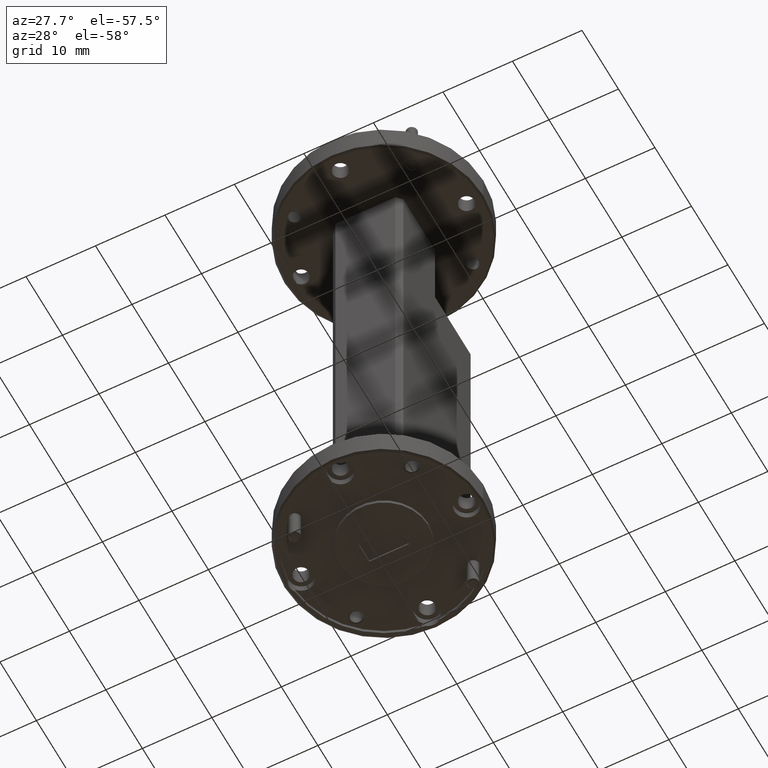
[diagram: clean part render]
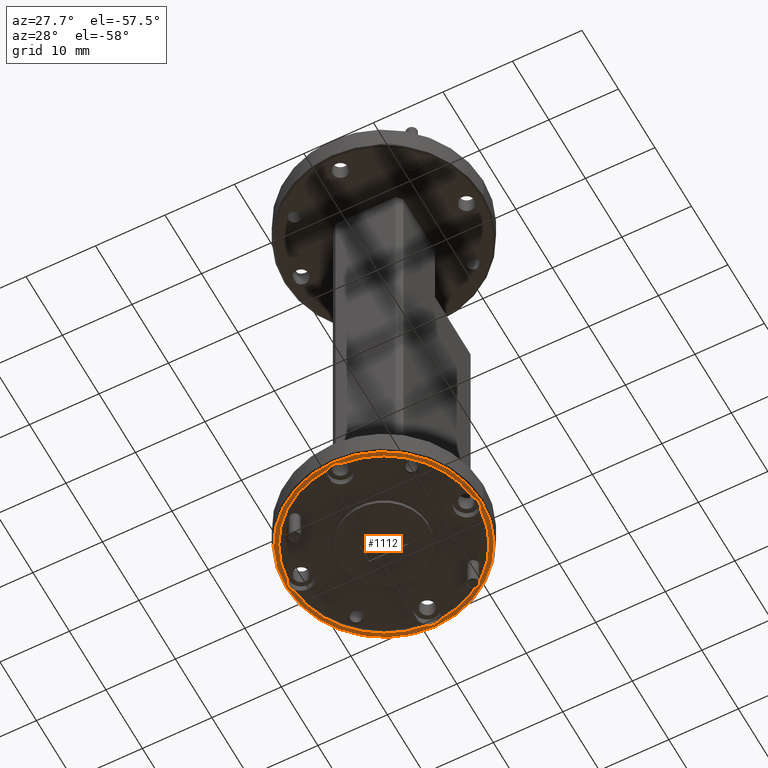
[diagram: same view with one face highlighted and labeled with its STEP entity id]
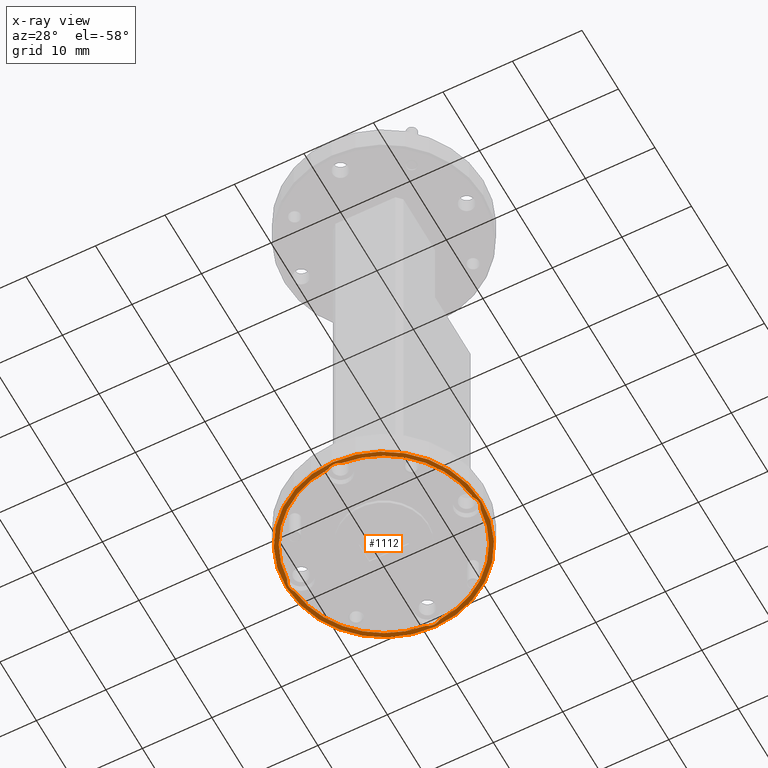
[diagram: x-ray of the same camera — body ghosted, the highlighted face saturated]
A machine part, auxiliary view. The second image highlights one B-rep face of the part: STEP entity #1112.
The next image is the same camera in x-ray: the body ghosted, the highlighted face saturated — about 0% of this face is hidden behind the body in this view.
In plain terms, the highlighted planar face has unit normal (-0, 0, 1).
Its self-contained STEP definition (entity closure, byte-faithful):
#4 = ORIENTED_EDGE ( 'NONE', *, *, #5366, .F. ) ;
#36 = DIRECTION ( 'NONE',  ( -0.000000000000000000, -0.000000000000000000, -1.000000000000000000 ) ) ;
#111 = DIRECTION ( 'NONE',  ( -1.000000000000000000, 0.000000000000000000, 0.000000000000000000 ) ) ;
#279 = CIRCLE ( 'NONE', #4089, 0.07000000000000000666 ) ;
#284 = CIRCLE ( 'NONE', #1395, 0.07000000000000000666 ) ;
#306 = AXIS2_PLACEMENT_3D ( 'NONE', #1195, #4235, #445 ) ;
#349 = DIRECTION ( 'NONE',  ( 0.000000000000000000, 0.000000000000000000, -1.000000000000000000 ) ) ;
#386 = CARTESIAN_POINT ( 'NONE',  ( -0.5524999999999993250, 6.827405905246489489E-17, -1.500000000000000222 ) ) ;
#445 = DIRECTION ( 'NONE',  ( -1.000000000000000000, 0.000000000000000000, 0.000000000000000000 ) ) ;
#660 = VERTEX_POINT ( 'NONE', #9755 ) ;
#734 = VERTEX_POINT ( 'NONE', #8198 ) ;
#735 = VERTEX_POINT ( 'NONE', #3778 ) ;
#811 = VERTEX_POINT ( 'NONE', #4733 ) ;
#830 = CARTESIAN_POINT ( 'NONE',  ( -0.5259550000000001724, 0.04034337585031758794, -1.500000000000000222 ) ) ;
#919 = CARTESIAN_POINT ( 'NONE',  ( 0.5259549999999999503, -0.04034337585031778223, -1.500000000000000222 ) ) ;
#988 = VERTEX_POINT ( 'NONE', #2856 ) ;
#1108 = AXIS2_PLACEMENT_3D ( 'NONE', #9369, #4949, #5711 ) ;
#1112 = ADVANCED_FACE ( 'NONE', ( #6789, #2175 ), #1568, .F. ) ;
#1141 = VERTEX_POINT ( 'NONE', #3654 ) ;
#1195 = CARTESIAN_POINT ( 'NONE',  ( 0.000000000000000000, 0.000000000000000000, -1.500000000000000222 ) ) ;
#1395 = AXIS2_PLACEMENT_3D ( 'NONE', #3806, #2413, #2320 ) ;
#1498 = EDGE_CURVE ( 'NONE', #4524, #3958, #7205, .T. ) ;
#1568 = PLANE ( 'NONE',  #9031 ) ;
#1775 = ORIENTED_EDGE ( 'NONE', *, *, #9734, .F. ) ;
#1804 = ORIENTED_EDGE ( 'NONE', *, *, #8162, .F. ) ;
#1861 = CARTESIAN_POINT ( 'NONE',  ( 0.000000000000000000, 0.000000000000000000, -1.500000000000000222 ) ) ;
#1977 = DIRECTION ( 'NONE',  ( 0.000000000000000000, -0.000000000000000000, -1.000000000000000000 ) ) ;
#2092 = CARTESIAN_POINT ( 'NONE',  ( 0.04034337585031765039, -0.5259549999999999503, -1.500000000000000222 ) ) ;
#2175 = FACE_OUTER_BOUND ( 'NONE', #4555, .T. ) ;
#2276 = ORIENTED_EDGE ( 'NONE', *, *, #4931, .F. ) ;
#2281 = DIRECTION ( 'NONE',  ( -1.000000000000000000, 0.000000000000000000, 0.000000000000000000 ) ) ;
#2318 = CARTESIAN_POINT ( 'NONE',  ( 0.000000000000000000, 0.000000000000000000, -1.500000000000000222 ) ) ;
#2320 = DIRECTION ( 'NONE',  ( -1.000000000000000000, 0.000000000000000000, 0.000000000000000000 ) ) ;
#2352 = ORIENTED_EDGE ( 'NONE', *, *, #6052, .F. ) ;
#2413 = DIRECTION ( 'NONE',  ( -0.000000000000000000, -0.000000000000000000, -1.000000000000000000 ) ) ;
#2416 = ORIENTED_EDGE ( 'NONE', *, *, #4721, .T. ) ;
#2448 = AXIS2_PLACEMENT_3D ( 'NONE', #6099, #36, #2281 ) ;
#2704 = CIRCLE ( 'NONE', #9268, 0.5524999999999993250 ) ;
#2721 = CARTESIAN_POINT ( 'NONE',  ( 0.000000000000000000, 0.000000000000000000, -1.500000000000000222 ) ) ;
#2807 = CARTESIAN_POINT ( 'NONE',  ( 0.4687500000000000000, 0.000000000000000000, -1.500000000000000222 ) ) ;
#2808 = CIRCLE ( 'NONE', #9530, 0.5274999999999999689 ) ;
#2827 = VERTEX_POINT ( 'NONE', #919 ) ;
#2856 = CARTESIAN_POINT ( 'NONE',  ( 0.5259550000000000614, 0.04034337585031766427, -1.500000000000000222 ) ) ;
#3189 = DIRECTION ( 'NONE',  ( 0.000000000000000000, 0.000000000000000000, -1.000000000000000000 ) ) ;
#3548 = EDGE_CURVE ( 'NONE', #2827, #4385, #3642, .T. ) ;
#3642 = CIRCLE ( 'NONE', #306, 0.5274999999999999689 ) ;
#3654 = CARTESIAN_POINT ( 'NONE',  ( -0.5259550000000000614, -0.04034337585031770590, -1.500000000000000222 ) ) ;
#3757 = DIRECTION ( 'NONE',  ( 1.000000000000000000, 0.000000000000000000, 0.000000000000000000 ) ) ;
#3778 = CARTESIAN_POINT ( 'NONE',  ( 0.5387500000000000622, 8.572527594031471957E-18, -1.500000000000000222 ) ) ;
#3804 = DIRECTION ( 'NONE',  ( -0.000000000000000000, 0.000000000000000000, 1.000000000000000000 ) ) ;
#3806 = CARTESIAN_POINT ( 'NONE',  ( 0.4687500000000000000, 0.000000000000000000, -1.500000000000000222 ) ) ;
#3823 = AXIS2_PLACEMENT_3D ( 'NONE', #6172, #6925, #4560 ) ;
#3891 = CIRCLE ( 'NONE', #4855, 0.07000000000000000666 ) ;
#3914 = ORIENTED_EDGE ( 'NONE', *, *, #1498, .T. ) ;
#3924 = CIRCLE ( 'NONE', #4580, 0.5274999999999999689 ) ;
#3958 = VERTEX_POINT ( 'NONE', #386 ) ;
#3965 = AXIS2_PLACEMENT_3D ( 'NONE', #7264, #349, #3996 ) ;
#3972 = ORIENTED_EDGE ( 'NONE', *, *, #3548, .F. ) ;
#3996 = DIRECTION ( 'NONE',  ( -1.000000000000000000, 0.000000000000000000, 0.000000000000000000 ) ) ;
#4089 = AXIS2_PLACEMENT_3D ( 'NONE', #7662, #7761, #6114 ) ;
#4158 = DIRECTION ( 'NONE',  ( -1.000000000000000000, 0.000000000000000000, 0.000000000000000000 ) ) ;
#4235 = DIRECTION ( 'NONE',  ( 0.000000000000000000, 0.000000000000000000, -1.000000000000000000 ) ) ;
#4267 = DIRECTION ( 'NONE',  ( 1.000000000000000000, 0.000000000000000000, 0.000000000000000000 ) ) ;
#4385 = VERTEX_POINT ( 'NONE', #2092 ) ;
#4524 = VERTEX_POINT ( 'NONE', #5532 ) ;
#4555 = EDGE_LOOP ( 'NONE', ( #3914, #2416 ) ) ;
#4560 = DIRECTION ( 'NONE',  ( -1.000000000000000000, 0.000000000000000000, 0.000000000000000000 ) ) ;
#4580 = AXIS2_PLACEMENT_3D ( 'NONE', #9264, #3189, #111 ) ;
#4721 = EDGE_CURVE ( 'NONE', #3958, #4524, #2704, .T. ) ;
#4733 = CARTESIAN_POINT ( 'NONE',  ( -0.5387500000000000622, 0.000000000000000000, -1.500000000000000222 ) ) ;
#4855 = AXIS2_PLACEMENT_3D ( 'NONE', #2807, #9727, #7672 ) ;
#4870 = CARTESIAN_POINT ( 'NONE',  ( 0.000000000000000000, 0.000000000000000000, -1.500000000000000222 ) ) ;
#4901 = DIRECTION ( 'NONE',  ( 0.000000000000000000, -0.000000000000000000, -1.000000000000000000 ) ) ;
#4931 = EDGE_CURVE ( 'NONE', #734, #660, #9752, .T. ) ;
#4949 = DIRECTION ( 'NONE',  ( -0.000000000000000000, -0.000000000000000000, -1.000000000000000000 ) ) ;
#5172 = VERTEX_POINT ( 'NONE', #6263 ) ;
#5195 = EDGE_CURVE ( 'NONE', #811, #6105, #6224, .T. ) ;
#5366 = EDGE_CURVE ( 'NONE', #5172, #1141, #6537, .T. ) ;
#5532 = CARTESIAN_POINT ( 'NONE',  ( 0.5524999999999993250, 0.000000000000000000, -1.500000000000000222 ) ) ;
#5711 = DIRECTION ( 'NONE',  ( -1.000000000000000000, 0.000000000000000000, 0.000000000000000000 ) ) ;
#6022 = DIRECTION ( 'NONE',  ( 1.000000000000000000, 0.000000000000000000, 0.000000000000000000 ) ) ;
#6052 = EDGE_CURVE ( 'NONE', #4385, #5172, #9015, .T. ) ;
#6099 = CARTESIAN_POINT ( 'NONE',  ( -9.184850993605148438E-17, -0.4687500000000000000, -1.500000000000000222 ) ) ;
#6105 = VERTEX_POINT ( 'NONE', #830 ) ;
#6114 = DIRECTION ( 'NONE',  ( -1.000000000000000000, 0.000000000000000000, 0.000000000000000000 ) ) ;
#6172 = CARTESIAN_POINT ( 'NONE',  ( -0.4687500000000000000, 0.000000000000000000, -1.500000000000000222 ) ) ;
#6224 = CIRCLE ( 'NONE', #3823, 0.07000000000000000666 ) ;
#6263 = CARTESIAN_POINT ( 'NONE',  ( -0.04034337585031758794, -0.5259550000000001724, -1.500000000000000222 ) ) ;
#6388 = EDGE_CURVE ( 'NONE', #735, #2827, #3891, .T. ) ;
#6537 = CIRCLE ( 'NONE', #3965, 0.5274999999999999689 ) ;
#6789 = FACE_BOUND ( 'NONE', #8785, .T. ) ;
#6895 = AXIS2_PLACEMENT_3D ( 'NONE', #1861, #4901, #6022 ) ;
#6925 = DIRECTION ( 'NONE',  ( -0.000000000000000000, -0.000000000000000000, -1.000000000000000000 ) ) ;
#7205 = CIRCLE ( 'NONE', #6895, 0.5524999999999993250 ) ;
#7264 = CARTESIAN_POINT ( 'NONE',  ( 0.000000000000000000, 0.000000000000000000, -1.500000000000000222 ) ) ;
#7396 = EDGE_CURVE ( 'NONE', #6105, #734, #2808, .T. ) ;
#7662 = CARTESIAN_POINT ( 'NONE',  ( -0.4687500000000000000, 0.000000000000000000, -1.500000000000000222 ) ) ;
#7672 = DIRECTION ( 'NONE',  ( -1.000000000000000000, 0.000000000000000000, 0.000000000000000000 ) ) ;
#7718 = EDGE_CURVE ( 'NONE', #988, #735, #284, .T. ) ;
#7761 = DIRECTION ( 'NONE',  ( -0.000000000000000000, -0.000000000000000000, -1.000000000000000000 ) ) ;
#7788 = ORIENTED_EDGE ( 'NONE', *, *, #5195, .F. ) ;
#7935 = DIRECTION ( 'NONE',  ( 0.000000000000000000, 0.000000000000000000, -1.000000000000000000 ) ) ;
#8112 = ORIENTED_EDGE ( 'NONE', *, *, #7718, .F. ) ;
#8162 = EDGE_CURVE ( 'NONE', #660, #988, #3924, .T. ) ;
#8198 = CARTESIAN_POINT ( 'NONE',  ( -0.04034337585031774059, 0.5259550000000000614, -1.500000000000000222 ) ) ;
#8785 = EDGE_LOOP ( 'NONE', ( #1804, #2276, #9229, #7788, #1775, #4, #2352, #3972, #8816, #8112 ) ) ;
#8816 = ORIENTED_EDGE ( 'NONE', *, *, #6388, .F. ) ;
#9015 = CIRCLE ( 'NONE', #2448, 0.07000000000000000666 ) ;
#9031 = AXIS2_PLACEMENT_3D ( 'NONE', #2318, #3804, #3757 ) ;
#9229 = ORIENTED_EDGE ( 'NONE', *, *, #7396, .F. ) ;
#9264 = CARTESIAN_POINT ( 'NONE',  ( 0.000000000000000000, 0.000000000000000000, -1.500000000000000222 ) ) ;
#9268 = AXIS2_PLACEMENT_3D ( 'NONE', #2721, #1977, #4267 ) ;
#9369 = CARTESIAN_POINT ( 'NONE',  ( -9.184850993605148438E-17, 0.4687500000000000000, -1.500000000000000222 ) ) ;
#9530 = AXIS2_PLACEMENT_3D ( 'NONE', #4870, #7935, #4158 ) ;
#9727 = DIRECTION ( 'NONE',  ( -0.000000000000000000, -0.000000000000000000, -1.000000000000000000 ) ) ;
#9734 = EDGE_CURVE ( 'NONE', #1141, #811, #279, .T. ) ;
#9752 = CIRCLE ( 'NONE', #1108, 0.07000000000000000666 ) ;
#9755 = CARTESIAN_POINT ( 'NONE',  ( 0.04034337585031757406, 0.5259550000000000614, -1.500000000000000222 ) ) ;